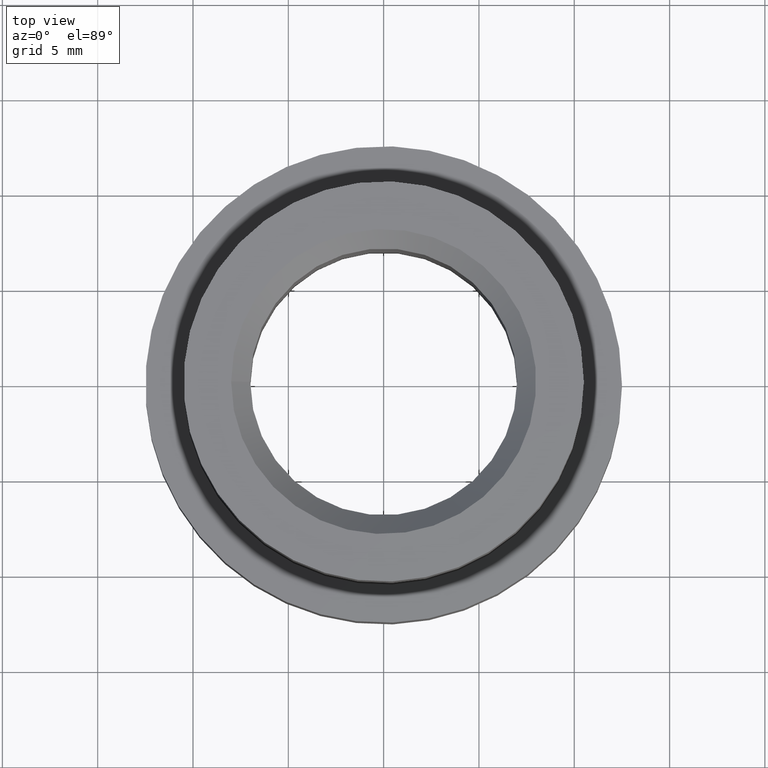
[diagram: clean part render]
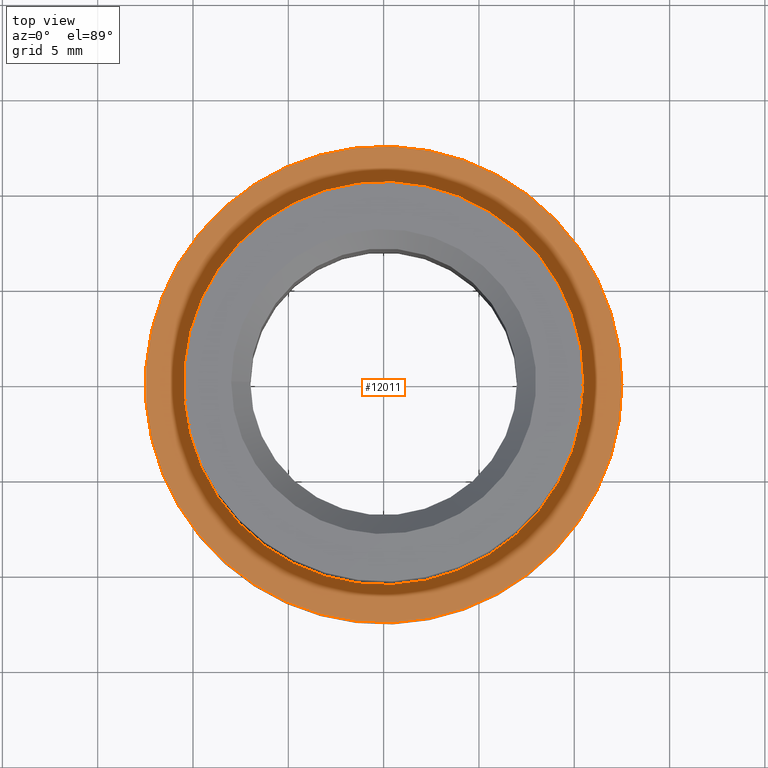
[diagram: same view with one face highlighted and labeled with its STEP entity id]
A machine part, top view. The second image highlights one B-rep face of the part: STEP entity #12011.
In plain terms, the highlighted planar face has unit normal (0, 0, -1).
Its self-contained STEP definition (entity closure, byte-faithful):
#42 = CARTESIAN_POINT ( 'NONE',  ( 12.50000000000000000, 0.000000000000000000, -1.499999999999999556 ) ) ;
#1283 = CIRCLE ( 'NONE', #5002, 10.50000000000000000 ) ;
#1680 = ORIENTED_EDGE ( 'NONE', *, *, #2308, .T. ) ;
#1917 = PLANE ( 'NONE',  #10462 ) ;
#2308 = EDGE_CURVE ( 'NONE', #8290, #8290, #4399, .T. ) ;
#2330 = AXIS2_PLACEMENT_3D ( 'NONE', #3332, #10466, #3292 ) ;
#2870 = VERTEX_POINT ( 'NONE', #9229 ) ;
#3292 = DIRECTION ( 'NONE',  ( 1.000000000000000000, 0.000000000000000000, 0.000000000000000000 ) ) ;
#3332 = CARTESIAN_POINT ( 'NONE',  ( 0.000000000000000000, 0.000000000000000000, -1.499999999999999556 ) ) ;
#3965 = ORIENTED_EDGE ( 'NONE', *, *, #8266, .F. ) ;
#4399 = CIRCLE ( 'NONE', #2330, 12.50000000000000000 ) ;
#4991 = CARTESIAN_POINT ( 'NONE',  ( 0.000000000000000000, 10.50000000000000000, -1.499999999999999556 ) ) ;
#5002 = AXIS2_PLACEMENT_3D ( 'NONE', #8811, #12926, #6835 ) ;
#6835 = DIRECTION ( 'NONE',  ( 1.000000000000000000, 0.000000000000000000, 0.000000000000000000 ) ) ;
#7018 = FACE_OUTER_BOUND ( 'NONE', #13152, .T. ) ;
#7541 = EDGE_LOOP ( 'NONE', ( #3965 ) ) ;
#8266 = EDGE_CURVE ( 'NONE', #2870, #2870, #1283, .T. ) ;
#8290 = VERTEX_POINT ( 'NONE', #42 ) ;
#8811 = CARTESIAN_POINT ( 'NONE',  ( 0.000000000000000000, 0.000000000000000000, -1.499999999999999556 ) ) ;
#8924 = DIRECTION ( 'NONE',  ( 0.000000000000000000, 0.000000000000000000, -1.000000000000000000 ) ) ;
#9229 = CARTESIAN_POINT ( 'NONE',  ( 10.50000000000000000, 0.000000000000000000, -1.499999999999999556 ) ) ;
#10462 = AXIS2_PLACEMENT_3D ( 'NONE', #4991, #8924, #12107 ) ;
#10466 = DIRECTION ( 'NONE',  ( -0.000000000000000000, -0.000000000000000000, 1.000000000000000000 ) ) ;
#12011 = ADVANCED_FACE ( 'NONE', ( #12754, #7018 ), #1917, .F. ) ;
#12107 = DIRECTION ( 'NONE',  ( -1.000000000000000000, 0.000000000000000000, -0.000000000000000000 ) ) ;
#12754 = FACE_BOUND ( 'NONE', #7541, .T. ) ;
#12926 = DIRECTION ( 'NONE',  ( -0.000000000000000000, -0.000000000000000000, 1.000000000000000000 ) ) ;
#13152 = EDGE_LOOP ( 'NONE', ( #1680 ) ) ;